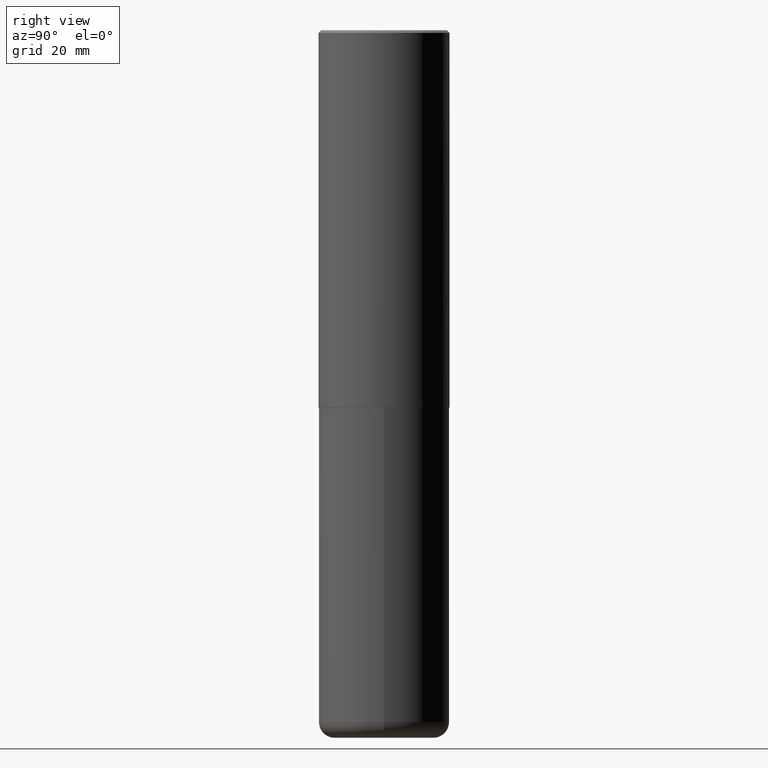
[diagram: clean part render]
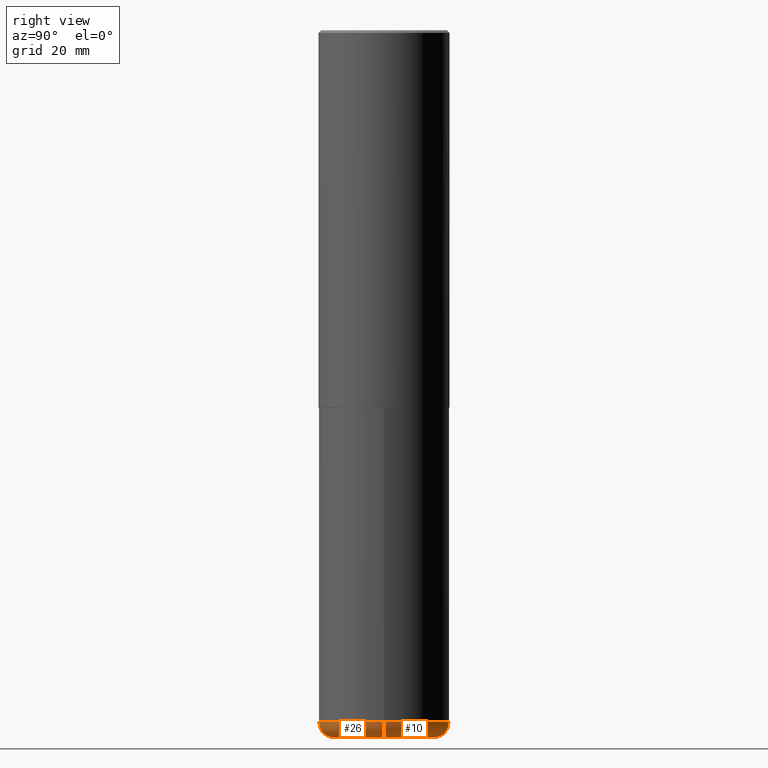
[diagram: same view with one multi-face feature highlighted, each face labeled with its STEP entity id]
A machine part, right view. The highlighted faces form ONE feature: a constant-radius fillet chain: 2 tangent blend faces with common blend radius 2.9997 mm. The faces share edges in the B-rep.
Their STEP definitions:
[1] entity #10 (Torus):
#10 = ADVANCED_FACE ( 'NONE', ( #367 ), #179, .T. ) ;
#14 = DIRECTION ( 'NONE',  ( -2.445468806185136597E-29, 3.491481338843145583E-15, 1.000000000000000000 ) ) ;
#19 = EDGE_CURVE ( 'NONE', #198, #280, #193, .T. ) ;
#21 = DIRECTION ( 'NONE',  ( -6.982962677686266711E-15, -1.000000000000000000, 3.491481338843145583E-15 ) ) ;
#25 = DIRECTION ( 'NONE',  ( 1.000000000000000000, -6.982962677686270655E-15, 0.000000000000000000 ) ) ;
#31 = AXIS2_PLACEMENT_3D ( 'NONE', #243, #146, #194 ) ;
#61 = CIRCLE ( 'NONE', #98, 0.4921499999999999764 ) ;
#66 = CIRCLE ( 'NONE', #318, 0.1181000000000000383 ) ;
#68 = CARTESIAN_POINT ( 'NONE',  ( 0.4921499999999999764, -2.158154445165724138E-14, -5.196900000000000297 ) ) ;
#78 = ORIENTED_EDGE ( 'NONE', *, *, #19, .T. ) ;
#79 = DIRECTION ( 'NONE',  ( 1.000000000000000000, -6.982962677686266711E-15, 4.883557194083112340E-29 ) ) ;
#93 = VERTEX_POINT ( 'NONE', #129 ) ;
#98 = AXIS2_PLACEMENT_3D ( 'NONE', #102, #228, #236 ) ;
#102 = CARTESIAN_POINT ( 'NONE',  ( 1.270885683886353718E-28, -1.814487936983394718E-14, -5.196900000000000297 ) ) ;
#107 = EDGE_CURVE ( 'NONE', #177, #93, #61, .T. ) ;
#127 = EDGE_LOOP ( 'NONE', ( #78, #222, #171, #398 ) ) ;
#129 = CARTESIAN_POINT ( 'NONE',  ( -0.4921499999999999764, -1.464794329579061349E-14, -5.196900000000000297 ) ) ;
#146 = DIRECTION ( 'NONE',  ( -2.445468806185136597E-29, 3.491481338843145583E-15, 1.000000000000000000 ) ) ;
#157 = CARTESIAN_POINT ( 'NONE',  ( 0.3740499999999999381, -2.116920050553986882E-14, -5.315000000000000391 ) ) ;
#171 = ORIENTED_EDGE ( 'NONE', *, *, #107, .F. ) ;
#177 = VERTEX_POINT ( 'NONE', #68 ) ;
#179 = TOROIDAL_SURFACE ( 'NONE', #208, 0.3740499999999999381, 0.1181000000000000383 ) ;
#190 = EDGE_CURVE ( 'NONE', #198, #177, #346, .T. ) ;
#193 = CIRCLE ( 'NONE', #31, 0.3740499999999999381 ) ;
#194 = DIRECTION ( 'NONE',  ( 1.000000000000000000, -6.982962677686265133E-15, 0.000000000000000000 ) ) ;
#198 = VERTEX_POINT ( 'NONE', #157 ) ;
#208 = AXIS2_PLACEMENT_3D ( 'NONE', #313, #14, #79 ) ;
#222 = ORIENTED_EDGE ( 'NONE', *, *, #384, .T. ) ;
#228 = DIRECTION ( 'NONE',  ( -2.445468806185136597E-29, 3.491481338843145583E-15, 1.000000000000000000 ) ) ;
#236 = DIRECTION ( 'NONE',  ( 1.000000000000000000, -6.982962677686265922E-15, 0.000000000000000000 ) ) ;
#243 = CARTESIAN_POINT ( 'NONE',  ( 1.299766670487400218E-28, -1.855722331595131973E-14, -5.315000000000000391 ) ) ;
#263 = DIRECTION ( 'NONE',  ( 7.105427357601001859E-15, 1.000000000000000000, -3.491481338843145583E-15 ) ) ;
#265 = CARTESIAN_POINT ( 'NONE',  ( -0.3740499999999999381, -1.548709426672329248E-14, -5.196900000000000297 ) ) ;
#280 = VERTEX_POINT ( 'NONE', #320 ) ;
#313 = CARTESIAN_POINT ( 'NONE',  ( 1.270885683886353718E-28, -1.814487936983394718E-14, -5.196900000000000297 ) ) ;
#318 = AXIS2_PLACEMENT_3D ( 'NONE', #265, #263, #379 ) ;
#320 = CARTESIAN_POINT ( 'NONE',  ( -0.3740499999999999381, -1.527369075431564084E-14, -5.315000000000000391 ) ) ;
#324 = CARTESIAN_POINT ( 'NONE',  ( 0.3740499999999999381, -2.075685655942249311E-14, -5.196900000000000297 ) ) ;
#333 = AXIS2_PLACEMENT_3D ( 'NONE', #324, #21, #25 ) ;
#346 = CIRCLE ( 'NONE', #333, 0.1181000000000000383 ) ;
#367 = FACE_OUTER_BOUND ( 'NONE', #127, .T. ) ;
#379 = DIRECTION ( 'NONE',  ( -1.000000000000000000, 7.105427357601001859E-15, 0.000000000000000000 ) ) ;
#384 = EDGE_CURVE ( 'NONE', #280, #93, #66, .T. ) ;
#398 = ORIENTED_EDGE ( 'NONE', *, *, #190, .F. ) ;
[2] entity #26 (Torus):
#2 = CIRCLE ( 'NONE', #196, 0.4921499999999999764 ) ;
#8 = EDGE_CURVE ( 'NONE', #280, #198, #336, .T. ) ;
#9 = ORIENTED_EDGE ( 'NONE', *, *, #384, .F. ) ;
#11 = ORIENTED_EDGE ( 'NONE', *, *, #8, .T. ) ;
#21 = DIRECTION ( 'NONE',  ( -6.982962677686266711E-15, -1.000000000000000000, 3.491481338843145583E-15 ) ) ;
#25 = DIRECTION ( 'NONE',  ( 1.000000000000000000, -6.982962677686270655E-15, 0.000000000000000000 ) ) ;
#26 = ADVANCED_FACE ( 'NONE', ( #241 ), #245, .T. ) ;
#32 = ORIENTED_EDGE ( 'NONE', *, *, #85, .F. ) ;
#62 = AXIS2_PLACEMENT_3D ( 'NONE', #239, #360, #64 ) ;
#64 = DIRECTION ( 'NONE',  ( 1.000000000000000000, -6.982962677686265133E-15, 0.000000000000000000 ) ) ;
#66 = CIRCLE ( 'NONE', #318, 0.1181000000000000383 ) ;
#68 = CARTESIAN_POINT ( 'NONE',  ( 0.4921499999999999764, -2.158154445165724138E-14, -5.196900000000000297 ) ) ;
#85 = EDGE_CURVE ( 'NONE', #93, #177, #2, .T. ) ;
#93 = VERTEX_POINT ( 'NONE', #129 ) ;
#106 = DIRECTION ( 'NONE',  ( -2.445468806185136597E-29, 3.491481338843145583E-15, 1.000000000000000000 ) ) ;
#112 = EDGE_LOOP ( 'NONE', ( #9, #11, #289, #32 ) ) ;
#124 = AXIS2_PLACEMENT_3D ( 'NONE', #281, #305, #142 ) ;
#129 = CARTESIAN_POINT ( 'NONE',  ( -0.4921499999999999764, -1.464794329579061349E-14, -5.196900000000000297 ) ) ;
#142 = DIRECTION ( 'NONE',  ( 1.000000000000000000, -6.982962677686266711E-15, 4.883557194083112340E-29 ) ) ;
#157 = CARTESIAN_POINT ( 'NONE',  ( 0.3740499999999999381, -2.116920050553986882E-14, -5.315000000000000391 ) ) ;
#177 = VERTEX_POINT ( 'NONE', #68 ) ;
#182 = CARTESIAN_POINT ( 'NONE',  ( 1.270885683886353718E-28, -1.814487936983394718E-14, -5.196900000000000297 ) ) ;
#190 = EDGE_CURVE ( 'NONE', #198, #177, #346, .T. ) ;
#196 = AXIS2_PLACEMENT_3D ( 'NONE', #182, #106, #327 ) ;
#198 = VERTEX_POINT ( 'NONE', #157 ) ;
#239 = CARTESIAN_POINT ( 'NONE',  ( 1.299766670487400218E-28, -1.855722331595131973E-14, -5.315000000000000391 ) ) ;
#241 = FACE_OUTER_BOUND ( 'NONE', #112, .T. ) ;
#245 = TOROIDAL_SURFACE ( 'NONE', #124, 0.3740499999999999381, 0.1181000000000000383 ) ;
#263 = DIRECTION ( 'NONE',  ( 7.105427357601001859E-15, 1.000000000000000000, -3.491481338843145583E-15 ) ) ;
#265 = CARTESIAN_POINT ( 'NONE',  ( -0.3740499999999999381, -1.548709426672329248E-14, -5.196900000000000297 ) ) ;
#280 = VERTEX_POINT ( 'NONE', #320 ) ;
#281 = CARTESIAN_POINT ( 'NONE',  ( 1.270885683886353718E-28, -1.814487936983394718E-14, -5.196900000000000297 ) ) ;
#289 = ORIENTED_EDGE ( 'NONE', *, *, #190, .T. ) ;
#305 = DIRECTION ( 'NONE',  ( -2.445468806185136597E-29, 3.491481338843145583E-15, 1.000000000000000000 ) ) ;
#318 = AXIS2_PLACEMENT_3D ( 'NONE', #265, #263, #379 ) ;
#320 = CARTESIAN_POINT ( 'NONE',  ( -0.3740499999999999381, -1.527369075431564084E-14, -5.315000000000000391 ) ) ;
#324 = CARTESIAN_POINT ( 'NONE',  ( 0.3740499999999999381, -2.075685655942249311E-14, -5.196900000000000297 ) ) ;
#327 = DIRECTION ( 'NONE',  ( 1.000000000000000000, -6.982962677686265922E-15, 0.000000000000000000 ) ) ;
#333 = AXIS2_PLACEMENT_3D ( 'NONE', #324, #21, #25 ) ;
#336 = CIRCLE ( 'NONE', #62, 0.3740499999999999381 ) ;
#346 = CIRCLE ( 'NONE', #333, 0.1181000000000000383 ) ;
#360 = DIRECTION ( 'NONE',  ( -2.445468806185136597E-29, 3.491481338843145583E-15, 1.000000000000000000 ) ) ;
#379 = DIRECTION ( 'NONE',  ( -1.000000000000000000, 7.105427357601001859E-15, 0.000000000000000000 ) ) ;
#384 = EDGE_CURVE ( 'NONE', #280, #93, #66, .T. ) ;